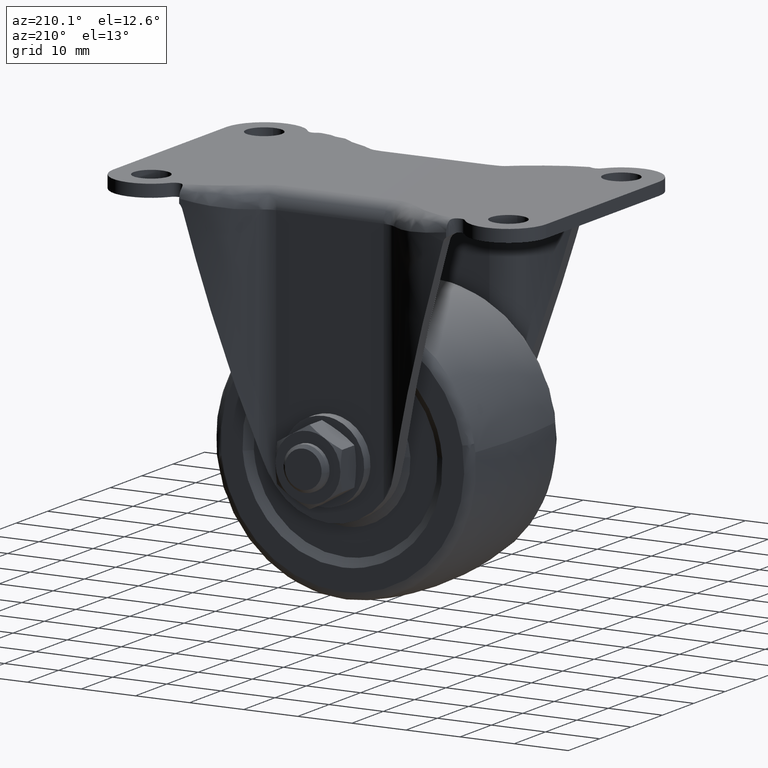
[diagram: clean part render]
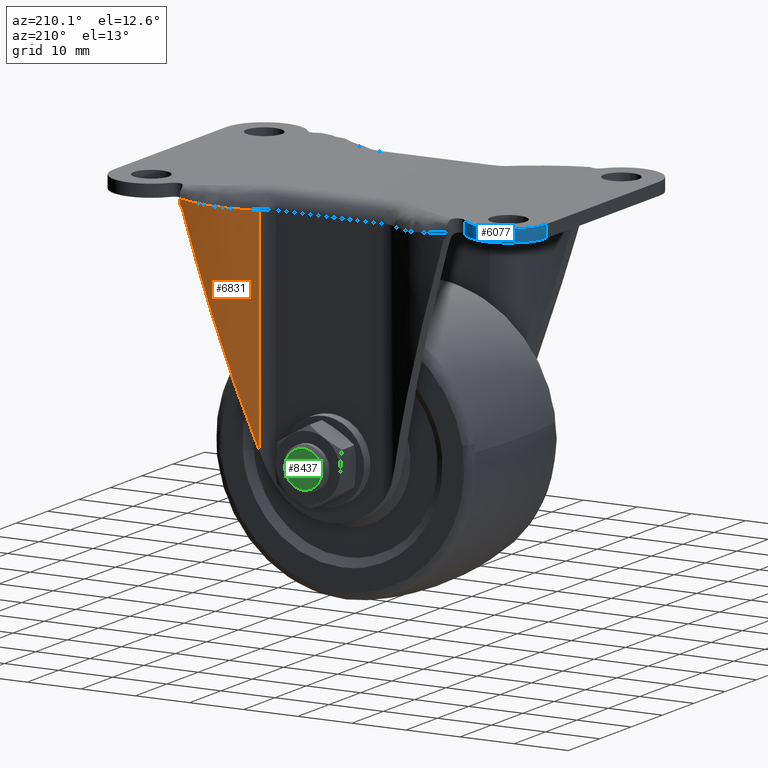
[diagram: same view with three faces highlighted in distinct colors, each labeled with its STEP entity id]
A machine part, auxiliary view with three faces highlighted in distinct colors.
Their STEP definitions:

[orange] entity #6831 — the highlighted face is a freeform B-spline surface patch.
#3869=CARTESIAN_POINT('',(12.548576289977261,18.977777763618452,-3.300000000000000));
#3870=VERTEX_POINT('',#3869);
#3952=CARTESIAN_POINT('',(24.667641000000000,23.500000000000000,-2.001148850836800));
#3953=VERTEX_POINT('',#3952);
#3964=CARTESIAN_POINT('',(12.548576289977261,18.977777763618452,-3.300000000000000));
#3965=CARTESIAN_POINT('',(12.699571079489420,19.106253771714801,-3.299195524164970));
#3966=CARTESIAN_POINT('',(13.005311262777701,19.366397088545430,-3.297566589756547));
#3967=CARTESIAN_POINT('',(13.485435455256690,19.741984510204379,-3.284790942789967));
#3968=CARTESIAN_POINT('',(13.988734731990730,20.111134331085552,-3.264518141812903));
#3969=CARTESIAN_POINT('',(14.516711754602770,20.470847492480988,-3.235951965597439));
#3970=CARTESIAN_POINT('',(15.069259828780851,20.819824103584590,-3.199313187044182));
#3971=CARTESIAN_POINT('',(15.646611938560429,21.156208770400060,-3.154541365812607));
#3972=CARTESIAN_POINT('',(16.248788944931789,21.478219652436199,-3.101649415036277));
#3973=CARTESIAN_POINT('',(16.875745401738431,21.783979132835491,-3.040647967345030));
#3974=CARTESIAN_POINT('',(17.527308100873711,22.071561571618229,-2.971478596806571));
#3975=CARTESIAN_POINT('',(18.191509865108529,22.334367139253491,-2.895707017082229));
#3976=CARTESIAN_POINT('',(18.887840343764150,22.579203447271851,-2.810349827133373));
#3977=CARTESIAN_POINT('',(19.637170018992720,22.809299329702409,-2.713410728799925));
#3978=CARTESIAN_POINT('',(20.473595268635901,23.025844324299559,-2.601124755951974));
#3979=CARTESIAN_POINT('',(21.398094180057061,23.217837251788271,-2.473421420822326));
#3980=CARTESIAN_POINT('',(22.410735786781078,23.371351055832658,-2.330253636698576));
#3981=CARTESIAN_POINT('',(23.510449868315451,23.478734373977780,-2.171864700474861));
#3982=CARTESIAN_POINT('',(24.272956679877311,23.492746911967480,-2.059375073976427));
#3983=CARTESIAN_POINT('',(24.667641000000000,23.500000000000000,-2.001148850836800));
#3984=B_SPLINE_CURVE_WITH_KNOTS('',3,(#3964,#3965,#3966,#3967,#3968,#3969,#3970,#3971,#3972,#3973,#3974,#3975,#3976,#3977,#3978,#3979,#3980,#3981,#3982,#3983),.UNSPECIFIED.,.F.,.U.,(4,1,1,1,1,1,1,1,1,1,1,1,1,1,1,1,1,4),(0.0,0.044750936098838,0.090613460901046,0.137595138134827,0.185703002988262,0.234943607274865,0.285323060204966,0.336847065220890,0.389520953306541,0.443349713138610,0.498338018407403,0.551631119144268,0.611045152836664,0.676582796505496,0.748245943248508,0.826035940231515,0.909953739934784,1.0),.UNSPECIFIED.);
#3985=EDGE_CURVE('',#3870,#3953,#3984,.T.);
#5167=CARTESIAN_POINT('',(24.075839116663001,23.490531915844901,-3.731982803574795));
#5168=VERTEX_POINT('',#5167);
#5174=CARTESIAN_POINT('',(24.667641000000000,23.500000000000000,-2.802620924285735));
#5175=VERTEX_POINT('',#5174);
#5176=CARTESIAN_POINT('',(24.667641000000000,23.500000000000000,-2.802620924285750));
#5177=CARTESIAN_POINT('',(24.527316376230718,23.500000000000011,-2.926870170419123));
#5178=CARTESIAN_POINT('',(24.407421994659501,23.498440066985740,-3.067539688323900));
#5179=CARTESIAN_POINT('',(24.257459107386801,23.495519741970590,-3.302573739993516));
#5180=CARTESIAN_POINT('',(24.212473473476638,23.494440206843759,-3.385293300278740));
#5181=CARTESIAN_POINT('',(24.135143641860040,23.492375255907341,-3.554843523453239));
#5182=CARTESIAN_POINT('',(24.102452988004440,23.491383710658290,-3.642133558134591));
#5183=CARTESIAN_POINT('',(24.075839116663001,23.490531915844901,-3.731982803574790));
#5184=B_SPLINE_CURVE_WITH_KNOTS('',3,(#5176,#5177,#5178,#5179,#5180,#5181,#5182,#5183),.UNSPECIFIED.,.F.,.U.,(4,2,2,4),(0.0,0.499999999999998,0.749999999999999,1.0),.UNSPECIFIED.);
#5185=EDGE_CURVE('',#5175,#5168,#5184,.T.);
#5656=CARTESIAN_POINT('',(12.548576289977261,18.977777763618452,-42.648375450143902));
#5657=VERTEX_POINT('',#5656);
#5658=CARTESIAN_POINT('',(12.548576289977261,18.977777763618452,-42.648375450143902));
#5659=CARTESIAN_POINT('',(17.511123445993110,23.280423785091497,-25.894664135126206));
#5660=CARTESIAN_POINT('',(24.075839116663008,23.490531915844901,-3.731982803574795));
#5668=(BOUNDED_CURVE()B_SPLINE_CURVE(2,(#5658,#5659,#5660),.UNSPECIFIED.,.F.,.U.)CURVE()GEOMETRIC_REPRESENTATION_ITEM()QUASI_UNIFORM_CURVE()RATIONAL_B_SPLINE_CURVE((1.0,0.942370564116356,1.0))REPRESENTATION_ITEM(''));
#5669=EDGE_CURVE('',#5657,#5168,#5668,.T.);
#6795=CARTESIAN_POINT('',(24.667641000000000,23.500000000000000,-2.802620924285735));
#6796=CARTESIAN_POINT('',(24.667641000000000,23.500000000000000,-2.001148850836800));
#6797=QUASI_UNIFORM_CURVE('',1,(#6795,#6796),.UNSPECIFIED.,.F.,.U.);
#6798=EDGE_CURVE('',#5175,#3953,#6797,.T.);
#6806=CARTESIAN_POINT('',(12.186833636735519,18.655747784763861,-43.664556115126580));
#6807=CARTESIAN_POINT('',(12.186833636735519,18.655747784763861,-0.959563669229553));
#6808=CARTESIAN_POINT('',(17.763003042634342,23.752143623122965,-43.664556115126580));
#6809=CARTESIAN_POINT('',(17.763003042634342,23.752143623122965,-0.959563669229553));
#6810=CARTESIAN_POINT('',(25.312674583104638,23.488751490478389,-43.664556115126580));
#6811=CARTESIAN_POINT('',(25.312674583104638,23.488751490478389,-0.959563669229553));
#6819=(BOUNDED_SURFACE()B_SPLINE_SURFACE(1,2,((#6806,#6808,#6810),(#6807,#6809,#6811)),.UNSPECIFIED.,.F.,.F.,.U.)B_SPLINE_SURFACE_WITH_KNOTS((2,2),(3,3),(0.0,42.704992445897027),(0.0,14.526327877363100),.UNSPECIFIED.)GEOMETRIC_REPRESENTATION_ITEM()RATIONAL_B_SPLINE_SURFACE(((1.0,0.924878069460769,0.998029123418849),(1.0,0.924878069460769,0.998029123418849)))REPRESENTATION_ITEM('')SURFACE());
#6820=CARTESIAN_POINT('',(12.548576289977261,18.977777763618452,-42.648375450143902));
#6821=CARTESIAN_POINT('',(12.548576289977261,18.977777763618452,-3.300000000000000));
#6822=QUASI_UNIFORM_CURVE('',1,(#6820,#6821),.UNSPECIFIED.,.F.,.U.);
#6823=EDGE_CURVE('',#5657,#3870,#6822,.T.);
#6824=ORIENTED_EDGE('',*,*,#6823,.T.);
#6825=ORIENTED_EDGE('',*,*,#3985,.T.);
#6826=ORIENTED_EDGE('',*,*,#6798,.F.);
#6827=ORIENTED_EDGE('',*,*,#5185,.T.);
#6828=ORIENTED_EDGE('',*,*,#5669,.F.);
#6829=EDGE_LOOP('',(#6824,#6825,#6826,#6827,#6828));
#6830=FACE_OUTER_BOUND('',#6829,.T.);
#6831=ADVANCED_FACE('',(#6830),#6819,.T.);

[blue] entity #6077 — the highlighted face is a freeform B-spline surface patch.
#6009=CARTESIAN_POINT('',(-39.997601274828902,17.816761361844879,-2.357499999999970));
#6010=CARTESIAN_POINT('',(-39.997601274828902,17.816761361844879,0.058937499999999));
#6011=CARTESIAN_POINT('',(-40.138205227125830,23.186209671137075,-2.357499999999970));
#6012=CARTESIAN_POINT('',(-40.138205227125830,23.186209671137075,0.058937499999999));
#6013=CARTESIAN_POINT('',(-34.988107412927462,24.711738144077341,-2.357499999999970));
#6014=CARTESIAN_POINT('',(-34.988107412927462,24.711738144077341,0.058937499999999));
#6015=CARTESIAN_POINT('',(-29.838009598729087,26.237266617017614,-2.357499999999970));
#6016=CARTESIAN_POINT('',(-29.838009598729087,26.237266617017614,0.058937499999999));
#6017=CARTESIAN_POINT('',(-27.031518849521358,21.657489953011641,-2.357499999999970));
#6018=CARTESIAN_POINT('',(-27.031518849521358,21.657489953011641,0.058937499999999));
#6026=(BOUNDED_SURFACE()B_SPLINE_SURFACE(1,2,((#6009,#6011,#6013,#6015,#6017),(#6010,#6012,#6014,#6016,#6018)),.UNSPECIFIED.,.F.,.F.,.U.)B_SPLINE_SURFACE_WITH_KNOTS((2,2),(3,2,3),(0.0,2.416437499999969),(0.0,9.504719248174517,19.009438496349031),.UNSPECIFIED.)GEOMETRIC_REPRESENTATION_ITEM()RATIONAL_B_SPLINE_SURFACE(((1.0,0.793353340291235,1.0,0.793353340291235,1.0),(1.0,0.793353340291235,1.0,0.793353340291235,1.0)))REPRESENTATION_ITEM('')SURFACE());
#6027=CARTESIAN_POINT('',(-40.0,18.0,-2.299999999999970));
#6028=VERTEX_POINT('',#6027);
#6029=CARTESIAN_POINT('',(-27.227352681291400,21.959361430054901,-2.299999999999970));
#6030=VERTEX_POINT('',#6029);
#6031=CARTESIAN_POINT('',(-40.0,18.0,-2.299999999999970));
#6032=CARTESIAN_POINT('',(-40.0,23.158697046598782,-2.299999999999970));
#6033=CARTESIAN_POINT('',(-35.072615348905792,24.686124857903870,-2.299999999999970));
#6034=CARTESIAN_POINT('',(-30.145230697811598,26.213552669208966,-2.299999999999970));
#6035=CARTESIAN_POINT('',(-27.227352681291400,21.959361430054901,-2.299999999999970));
#6043=(BOUNDED_CURVE()B_SPLINE_CURVE(2,(#6031,#6032,#6033,#6034,#6035),.UNSPECIFIED.,.F.,.U.)B_SPLINE_CURVE_WITH_KNOTS((3,2,3),(0.0,0.500000000000000,1.0),.UNSPECIFIED.)CURVE()GEOMETRIC_REPRESENTATION_ITEM()RATIONAL_B_SPLINE_CURVE((1.0,0.805011772269991,1.0,0.805011772269991,1.0))REPRESENTATION_ITEM(''));
#6044=EDGE_CURVE('',#6028,#6030,#6043,.T.);
#6045=ORIENTED_EDGE('',*,*,#6044,.F.);
#6046=CARTESIAN_POINT('',(-40.0,18.0,0.0));
#6047=VERTEX_POINT('',#6046);
#6048=CARTESIAN_POINT('',(-40.0,18.0,-2.299999999999970));
#6049=CARTESIAN_POINT('',(-40.0,18.0,0.0));
#6050=QUASI_UNIFORM_CURVE('',1,(#6048,#6049),.UNSPECIFIED.,.F.,.U.);
#6051=EDGE_CURVE('',#6028,#6047,#6050,.T.);
#6052=ORIENTED_EDGE('',*,*,#6051,.T.);
#6053=CARTESIAN_POINT('',(-27.227352681291400,21.959361430054901,0.0));
#6054=VERTEX_POINT('',#6053);
#6055=CARTESIAN_POINT('',(-40.0,18.0,0.0));
#6056=CARTESIAN_POINT('',(-40.0,23.158697046598782,0.0));
#6057=CARTESIAN_POINT('',(-35.072615348905792,24.686124857903870,0.0));
#6058=CARTESIAN_POINT('',(-30.145230697811598,26.213552669208966,0.0));
#6059=CARTESIAN_POINT('',(-27.227352681291400,21.959361430054901,0.0));
#6067=(BOUNDED_CURVE()B_SPLINE_CURVE(2,(#6055,#6056,#6057,#6058,#6059),.UNSPECIFIED.,.F.,.U.)B_SPLINE_CURVE_WITH_KNOTS((3,2,3),(0.0,0.500000000000000,1.0),.UNSPECIFIED.)CURVE()GEOMETRIC_REPRESENTATION_ITEM()RATIONAL_B_SPLINE_CURVE((1.0,0.805011772269991,1.0,0.805011772269991,1.0))REPRESENTATION_ITEM(''));
#6068=EDGE_CURVE('',#6047,#6054,#6067,.T.);
#6069=ORIENTED_EDGE('',*,*,#6068,.T.);
#6070=CARTESIAN_POINT('',(-27.227352681291400,21.959361430054901,-2.299999999999970));
#6071=CARTESIAN_POINT('',(-27.227352681291400,21.959361430054901,0.0));
#6072=QUASI_UNIFORM_CURVE('',1,(#6070,#6071),.UNSPECIFIED.,.F.,.U.);
#6073=EDGE_CURVE('',#6030,#6054,#6072,.T.);
#6074=ORIENTED_EDGE('',*,*,#6073,.F.);
#6075=EDGE_LOOP('',(#6045,#6052,#6069,#6074));
#6076=FACE_OUTER_BOUND('',#6075,.T.);
#6077=ADVANCED_FACE('',(#6076),#6026,.T.);

[green] entity #8437 — the highlighted face is a freeform B-spline surface patch.
#7376=CARTESIAN_POINT('',(3.389518934708433,26.499999999959559,-42.733239074212008));
#7377=VERTEX_POINT('',#7376);
#7383=CARTESIAN_POINT('',(0.0,26.500000000000000,-39.600000000000108));
#7384=VERTEX_POINT('',#7383);
#7385=CARTESIAN_POINT('',(0.0,26.500000000000000,-39.600000000000108));
#7386=CARTESIAN_POINT('',(3.142927671060841,26.500000000000004,-39.600000000000108));
#7387=CARTESIAN_POINT('',(3.389518934708433,26.499999999959556,-42.733239074212008));
#7395=(BOUNDED_CURVE()B_SPLINE_CURVE(2,(#7385,#7386,#7387),.UNSPECIFIED.,.F.,.U.)B_SPLINE_CURVE_WITH_KNOTS((3,3),(0.0,0.236331300601395),.UNSPECIFIED.)CURVE()GEOMETRIC_REPRESENTATION_ITEM()RATIONAL_B_SPLINE_CURVE((1.0,0.723120658641952,0.969723356106344))REPRESENTATION_ITEM(''));
#7396=EDGE_CURVE('',#7384,#7377,#7395,.T.);
#7398=CARTESIAN_POINT('',(-3.389518934708431,26.499999999959559,-43.266760925787999));
#7399=VERTEX_POINT('',#7398);
#7400=CARTESIAN_POINT('',(-3.389518934708432,26.499999999959559,-43.266760925787999));
#7401=CARTESIAN_POINT('',(-3.399999999999890,26.500000000000004,-43.133586364137656));
#7402=CARTESIAN_POINT('',(-3.399999999999890,26.500000000000000,-43.0));
#7403=CARTESIAN_POINT('',(-3.399999999999890,26.500000000000000,-39.600000000000108));
#7404=CARTESIAN_POINT('',(0.0,26.500000000000000,-39.600000000000108));
#7412=(BOUNDED_CURVE()B_SPLINE_CURVE(2,(#7400,#7401,#7402,#7403,#7404),.UNSPECIFIED.,.F.,.U.)B_SPLINE_CURVE_WITH_KNOTS((3,2,3),(0.736331300601394,0.750000000000000,1.0),.UNSPECIFIED.)CURVE()GEOMETRIC_REPRESENTATION_ITEM()RATIONAL_B_SPLINE_CURVE((0.969723356106343,0.983986122544595,1.0,0.707106781186548,1.0))REPRESENTATION_ITEM(''));
#7413=EDGE_CURVE('',#7399,#7384,#7412,.T.);
#7450=CARTESIAN_POINT('',(0.0,26.500000000000000,-46.399999999999892));
#7451=VERTEX_POINT('',#7450);
#7452=CARTESIAN_POINT('',(0.0,26.500000000000000,-46.399999999999892));
#7453=CARTESIAN_POINT('',(-3.142927671060817,26.500000000000004,-46.399999999999885));
#7454=CARTESIAN_POINT('',(-3.389518934708431,26.499999999959556,-43.266760925787999));
#7462=(BOUNDED_CURVE()B_SPLINE_CURVE(2,(#7452,#7453,#7454),.UNSPECIFIED.,.F.,.U.)B_SPLINE_CURVE_WITH_KNOTS((3,3),(0.500000000000000,0.736331300601393),.UNSPECIFIED.)CURVE()GEOMETRIC_REPRESENTATION_ITEM()RATIONAL_B_SPLINE_CURVE((1.0,0.723120658641953,0.969723356106341))REPRESENTATION_ITEM(''));
#7463=EDGE_CURVE('',#7451,#7399,#7462,.T.);
#7465=CARTESIAN_POINT('',(3.389518934708433,26.499999999959552,-42.733239074212008));
#7466=CARTESIAN_POINT('',(3.399999999999891,26.500000000000004,-42.866413635862337));
#7467=CARTESIAN_POINT('',(3.399999999999890,26.500000000000000,-43.0));
#7468=CARTESIAN_POINT('',(3.399999999999890,26.500000000000000,-46.399999999999892));
#7469=CARTESIAN_POINT('',(0.0,26.500000000000000,-46.399999999999892));
#7477=(BOUNDED_CURVE()B_SPLINE_CURVE(2,(#7465,#7466,#7467,#7468,#7469),.UNSPECIFIED.,.F.,.U.)B_SPLINE_CURVE_WITH_KNOTS((3,2,3),(0.236331300601395,0.250000000000000,0.500000000000000),.UNSPECIFIED.)CURVE()GEOMETRIC_REPRESENTATION_ITEM()RATIONAL_B_SPLINE_CURVE((0.969723356106344,0.983986122544596,1.0,0.707106781186548,1.0))REPRESENTATION_ITEM(''));
#7478=EDGE_CURVE('',#7377,#7451,#7477,.T.);
#8426=CARTESIAN_POINT('',(-3.738622159270948,26.500000000000000,-39.260338344458340));
#8427=CARTESIAN_POINT('',(-3.738622159270948,26.500000000000000,-46.739661777135133));
#8428=CARTESIAN_POINT('',(3.738622341661161,26.500000000000000,-39.260338344458340));
#8429=CARTESIAN_POINT('',(3.738622341661161,26.500000000000000,-46.739661777135133));
#8430=B_SPLINE_SURFACE_WITH_KNOTS('',1,1,((#8426,#8428),(#8427,#8429)),.UNSPECIFIED.,.F.,.F.,.U.,(2,2),(2,2),(0.0,7.479323432676793),(0.0,7.477244500932108),.UNSPECIFIED.);
#8431=ORIENTED_EDGE('',*,*,#7478,.T.);
#8432=ORIENTED_EDGE('',*,*,#7463,.T.);
#8433=ORIENTED_EDGE('',*,*,#7413,.T.);
#8434=ORIENTED_EDGE('',*,*,#7396,.T.);
#8435=EDGE_LOOP('',(#8431,#8432,#8433,#8434));
#8436=FACE_OUTER_BOUND('',#8435,.T.);
#8437=ADVANCED_FACE('',(#8436),#8430,.F.);